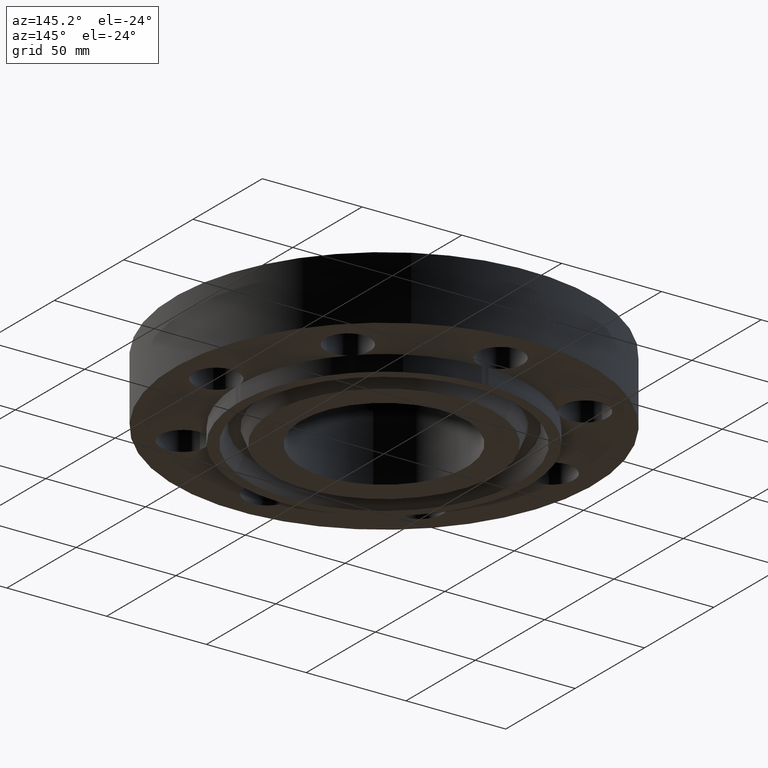
[diagram: clean part render]
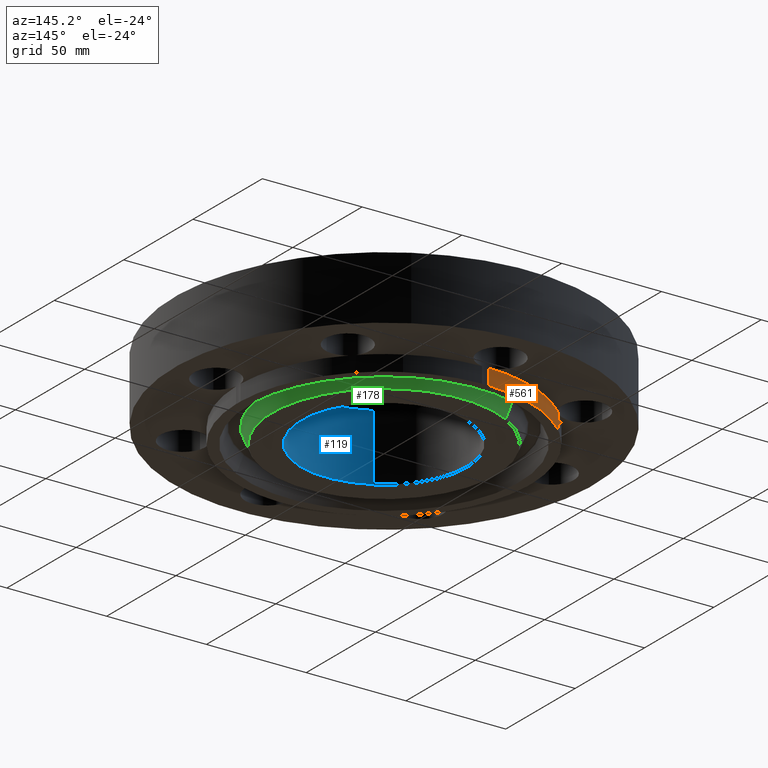
[diagram: same view with three faces highlighted in distinct colors, each labeled with its STEP entity id]
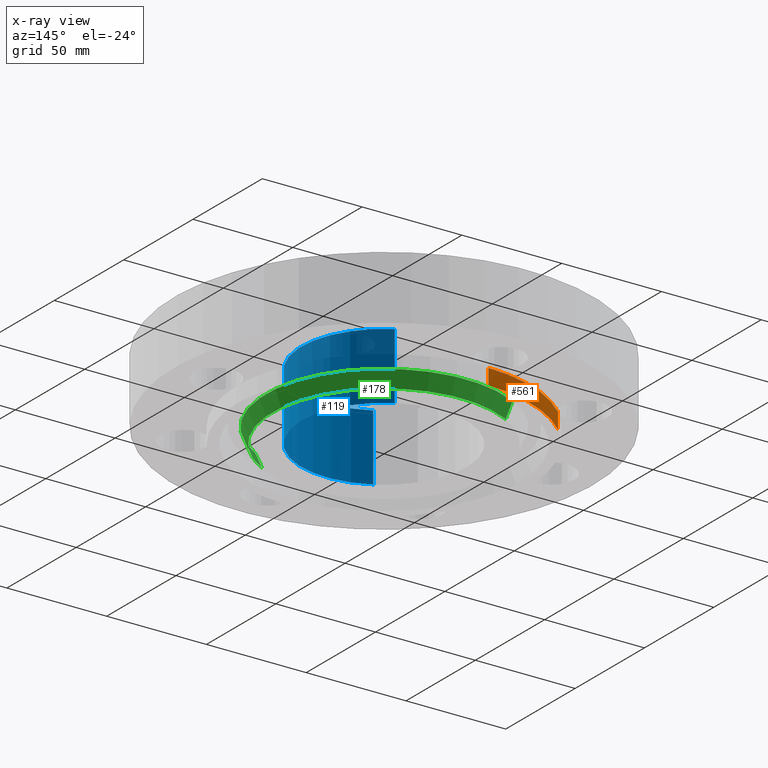
[diagram: x-ray of the same camera — body ghosted, the three highlighted faces saturated]
A machine part, auxiliary view with three faces highlighted in distinct colors.
The next image is the same camera in x-ray (body ghosted, the three faces saturated) — at least one of them is partly hidden behind the body in this view.
Their STEP definitions:

[orange] entity #561 — the highlighted cylindrical surface (partial cylindrical patch) has radius 73.025 mm, axis along (0, 0, -1).
#286=AXIS2_PLACEMENT_3D('Circle Axis2P3D',#284,#285,$) ;
#359=AXIS2_PLACEMENT_3D('Cylinder Axis2P3D',#356,#357,#358) ;
#538=AXIS2_PLACEMENT_3D('Circle Axis2P3D',#536,#537,$) ;
#281=CARTESIAN_POINT('Vertex',(-1.98887798493,2.07605138692,-0.313000000001)) ;
#284=CARTESIAN_POINT('Axis2P3D Location',(0.,0.,-0.313000000001)) ;
#288=CARTESIAN_POINT('Vertex',(-0.0616409036851,2.87433912388,-0.313000000001)) ;
#356=CARTESIAN_POINT('Axis2P3D Location',(0.,0.,0.748500000003)) ;
#536=CARTESIAN_POINT('Axis2P3D Location',(0.,0.,2.79741234551E-016)) ;
#540=CARTESIAN_POINT('Vertex',(-1.98887798493,2.07605138692,2.79741234551E-016)) ;
#542=CARTESIAN_POINT('Vertex',(-0.0616409036851,2.87433912388,2.79741234551E-016)) ;
#545=CARTESIAN_POINT('Line Origine',(-0.0616409036851,2.87433912388,-0.156500000001)) ;
#550=CARTESIAN_POINT('Line Origine',(-1.98887798493,2.07605138692,-0.156500000001)) ;
#285=DIRECTION('Axis2P3D Direction',(0.,0.,-0.0393700787402)) ;
#357=DIRECTION('Axis2P3D Direction',(0.,0.,-0.0393700787402)) ;
#358=DIRECTION('Axis2P3D XDirection',(0.0188750212049,0.0345504945626,0.)) ;
#537=DIRECTION('Axis2P3D Direction',(0.,0.,-0.0393700787402)) ;
#546=DIRECTION('Vector Direction',(0.,0.,-0.0393700787402)) ;
#551=DIRECTION('Vector Direction',(0.,0.,-0.0393700787402)) ;
#547=VECTOR('Line Direction',#546,0.0393700787402) ;
#552=VECTOR('Line Direction',#551,0.0393700787402) ;
#556=ORIENTED_EDGE('',*,*,#544,.T.) ;
#557=ORIENTED_EDGE('',*,*,#549,.T.) ;
#558=ORIENTED_EDGE('',*,*,#290,.F.) ;
#559=ORIENTED_EDGE('',*,*,#554,.F.) ;
#561=ADVANCED_FACE('PartBody',(#560),#360,.T.) ;
#287=CIRCLE('generated circle',#286,2.87500000001) ;
#539=CIRCLE('generated circle',#538,2.87500000001) ;
#360=CYLINDRICAL_SURFACE('generated cylinder',#359,2.87500000001) ;
#290=EDGE_CURVE('',#282,#289,#287,.T.) ;
#544=EDGE_CURVE('',#541,#543,#539,.T.) ;
#549=EDGE_CURVE('',#543,#289,#548,.T.) ;
#554=EDGE_CURVE('',#541,#282,#553,.T.) ;
#555=EDGE_LOOP('',(#556,#557,#558,#559)) ;
#560=FACE_OUTER_BOUND('',#555,.T.) ;
#548=LINE('Line',#545,#547) ;
#553=LINE('Line',#550,#552) ;
#282=VERTEX_POINT('',#281) ;
#289=VERTEX_POINT('',#288) ;
#541=VERTEX_POINT('',#540) ;
#543=VERTEX_POINT('',#542) ;

[blue] entity #119 — the highlighted cylindrical surface (partial cylindrical patch) has radius 41.402 mm, axis along (0, 0, -1).
#60=AXIS2_PLACEMENT_3D('Circle Axis2P3D',#58,#59,$) ;
#80=AXIS2_PLACEMENT_3D('Cylinder Axis2P3D',#77,#78,#79) ;
#110=AXIS2_PLACEMENT_3D('Circle Axis2P3D',#108,#109,$) ;
#58=CARTESIAN_POINT('Axis2P3D Location',(2.44773580232E-016,-6.99353086378E-017,1.)) ;
#62=CARTESIAN_POINT('Vertex',(0.781463627928,1.43045957589,1.)) ;
#64=CARTESIAN_POINT('Vertex',(-0.781463627928,-1.43045957589,1.)) ;
#77=CARTESIAN_POINT('Axis2P3D Location',(0.,0.,0.748500000003)) ;
#82=CARTESIAN_POINT('Line Origine',(-0.781463627928,-1.43045957589,0.343500000001)) ;
#86=CARTESIAN_POINT('Vertex',(-0.781463627928,-1.43045957589,-0.313000000001)) ;
#93=CARTESIAN_POINT('Vertex',(0.781463627928,1.43045957589,-0.313000000001)) ;
#96=CARTESIAN_POINT('Line Origine',(0.781463627928,1.43045957589,0.343500000001)) ;
#108=CARTESIAN_POINT('Axis2P3D Location',(0.,0.,-0.313000000001)) ;
#59=DIRECTION('Axis2P3D Direction',(0.,0.,-0.0393700787402)) ;
#78=DIRECTION('Axis2P3D Direction',(0.,0.,-0.0393700787402)) ;
#79=DIRECTION('Axis2P3D XDirection',(0.0188750212049,0.0345504945626,0.)) ;
#83=DIRECTION('Vector Direction',(0.,0.,-0.0393700787402)) ;
#97=DIRECTION('Vector Direction',(0.,0.,-0.0393700787402)) ;
#109=DIRECTION('Axis2P3D Direction',(0.,0.,-0.0393700787402)) ;
#84=VECTOR('Line Direction',#83,0.0393700787402) ;
#98=VECTOR('Line Direction',#97,0.0393700787402) ;
#114=ORIENTED_EDGE('',*,*,#100,.T.) ;
#115=ORIENTED_EDGE('',*,*,#112,.T.) ;
#116=ORIENTED_EDGE('',*,*,#88,.F.) ;
#117=ORIENTED_EDGE('',*,*,#66,.F.) ;
#119=ADVANCED_FACE('PartBody',(#118),#81,.F.) ;
#61=CIRCLE('generated circle',#60,1.63000000001) ;
#111=CIRCLE('generated circle',#110,1.63000000001) ;
#81=CYLINDRICAL_SURFACE('generated cylinder',#80,1.63000000001) ;
#66=EDGE_CURVE('',#63,#65,#61,.T.) ;
#88=EDGE_CURVE('',#65,#87,#85,.T.) ;
#100=EDGE_CURVE('',#63,#94,#99,.T.) ;
#112=EDGE_CURVE('',#94,#87,#111,.T.) ;
#113=EDGE_LOOP('',(#114,#115,#116,#117)) ;
#118=FACE_OUTER_BOUND('',#113,.T.) ;
#85=LINE('Line',#82,#84) ;
#99=LINE('Line',#96,#98) ;
#63=VERTEX_POINT('',#62) ;
#65=VERTEX_POINT('',#64) ;
#87=VERTEX_POINT('',#86) ;
#94=VERTEX_POINT('',#93) ;

[green] entity #178 — the highlighted conical surface has half-angle 23 deg.
#127=AXIS2_PLACEMENT_3D('Circle Axis2P3D',#125,#126,$) ;
#151=AXIS2_PLACEMENT_3D('Cone Axis2P3D',#148,#149,#150) ;
#162=AXIS2_PLACEMENT_3D('Circle Axis2P3D',#160,#161,$) ;
#125=CARTESIAN_POINT('Axis2P3D Location',(8.39223703654E-016,-2.79741234551E-016,-0.313000000001)) ;
#129=CARTESIAN_POINT('Vertex',(-1.05617446155,1.93331438385,-0.313000000001)) ;
#131=CARTESIAN_POINT('Vertex',(1.05617446155,-1.93331438385,-0.313000000001)) ;
#148=CARTESIAN_POINT('Axis2P3D Location',(0.,0.,-0.373000000001)) ;
#153=CARTESIAN_POINT('Line Origine',(-1.08610102335,1.98809458777,-0.165943667509)) ;
#157=CARTESIAN_POINT('Vertex',(-1.11602758514,2.0428747917,-0.0188873350169)) ;
#160=CARTESIAN_POINT('Axis2P3D Location',(0.,0.,-0.0188873350169)) ;
#164=CARTESIAN_POINT('Vertex',(1.11602758514,-2.0428747917,-0.0188873350169)) ;
#167=CARTESIAN_POINT('Line Origine',(1.08610102335,-1.98809458777,-0.165943667509)) ;
#126=DIRECTION('Axis2P3D Direction',(0.,0.,-0.0393700787402)) ;
#149=DIRECTION('Axis2P3D Direction',(0.,0.,0.0393700787402)) ;
#150=DIRECTION('Axis2P3D XDirection',(-0.0188750212049,0.0345504945626,0.)) ;
#154=DIRECTION('Vector Direction',(-0.00737505833565,0.0134999537303,0.0362403485611)) ;
#161=DIRECTION('Axis2P3D Direction',(0.,0.,0.0393700787402)) ;
#168=DIRECTION('Vector Direction',(0.00737505833565,-0.0134999537303,0.0362403485611)) ;
#155=VECTOR('Line Direction',#154,0.0393700787402) ;
#169=VECTOR('Line Direction',#168,0.0393700787402) ;
#173=ORIENTED_EDGE('',*,*,#159,.F.) ;
#174=ORIENTED_EDGE('',*,*,#166,.F.) ;
#175=ORIENTED_EDGE('',*,*,#171,.T.) ;
#176=ORIENTED_EDGE('',*,*,#133,.F.) ;
#178=ADVANCED_FACE('PartBody',(#177),#152,.T.) ;
#128=CIRCLE('generated circle',#127,2.20300000001) ;
#163=CIRCLE('generated circle',#162,2.32784341942) ;
#152=CONICAL_SURFACE('Cone',#151,2.17753151104,0.401425727959) ;
#133=EDGE_CURVE('',#130,#132,#128,.T.) ;
#159=EDGE_CURVE('',#158,#130,#156,.F.) ;
#166=EDGE_CURVE('',#165,#158,#163,.T.) ;
#171=EDGE_CURVE('',#165,#132,#170,.F.) ;
#172=EDGE_LOOP('',(#173,#174,#175,#176)) ;
#177=FACE_OUTER_BOUND('',#172,.T.) ;
#156=LINE('Line',#153,#155) ;
#170=LINE('Line',#167,#169) ;
#130=VERTEX_POINT('',#129) ;
#132=VERTEX_POINT('',#131) ;
#158=VERTEX_POINT('',#157) ;
#165=VERTEX_POINT('',#164) ;